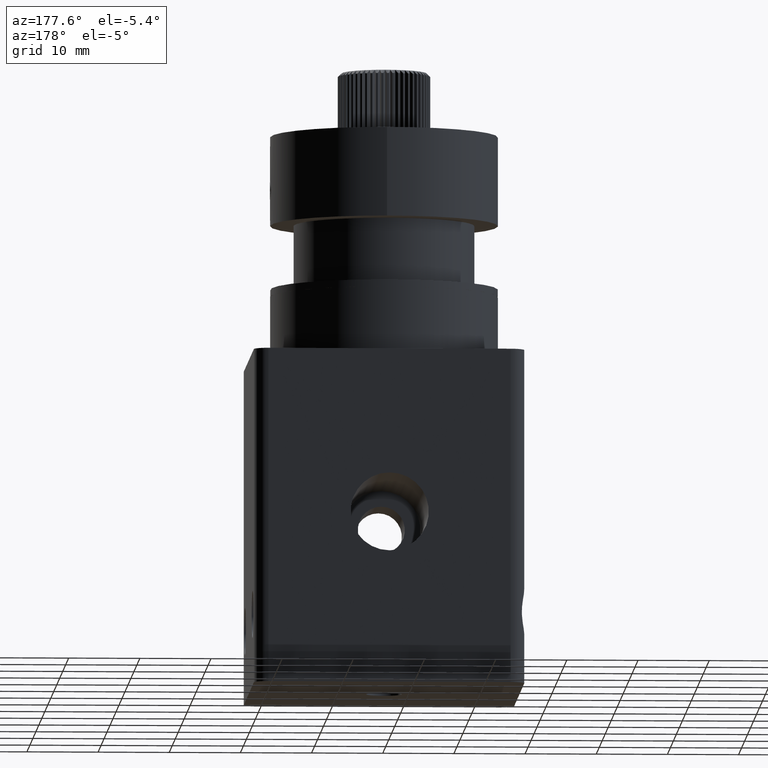
[diagram: clean part render]
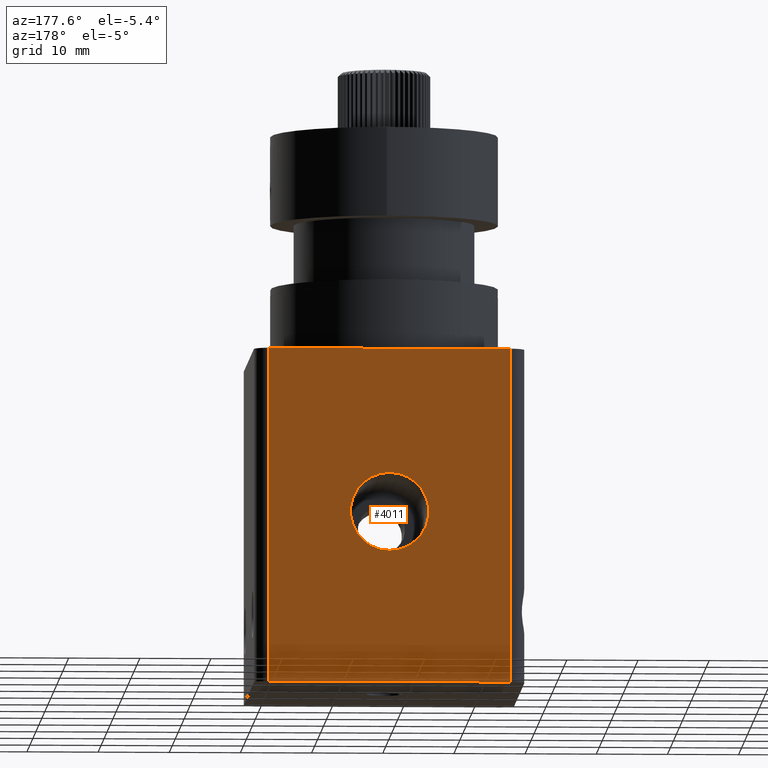
[diagram: same view with one face highlighted and labeled with its STEP entity id]
A machine part, auxiliary view. The second image highlights one B-rep face of the part: STEP entity #4011.
In plain terms, the highlighted planar face has unit normal (-0, -1, 0).
Its self-contained STEP definition (entity closure, byte-faithful):
#33 = VECTOR ( 'NONE', #7932, 1000.000000000000000 ) ;
#318 = LINE ( 'NONE', #7203, #2427 ) ;
#341 = EDGE_CURVE ( 'NONE', #7749, #7707, #318, .T. ) ;
#483 = AXIS2_PLACEMENT_3D ( 'NONE', #2908, #3500, #986 ) ;
#851 = LINE ( 'NONE', #3415, #33 ) ;
#986 = DIRECTION ( 'NONE',  ( 0.0000000000000000000, 0.0000000000000000000, 1.000000000000000000 ) ) ;
#1188 = DIRECTION ( 'NONE',  ( -1.000000000000000000, 9.130123557772669600E-017, -0.0000000000000000000 ) ) ;
#1401 = CARTESIAN_POINT ( 'NONE',  ( 35.82532685223226600, 60.65691868999381600, 46.15325513704508600 ) ) ;
#1613 = EDGE_CURVE ( 'NONE', #2401, #2108, #7386, .T. ) ;
#1744 = DIRECTION ( 'NONE',  ( 0.0000000000000000000, 0.0000000000000000000, 1.000000000000000000 ) ) ;
#1832 = ORIENTED_EDGE ( 'NONE', *, *, #1613, .F. ) ;
#1877 = FACE_BOUND ( 'NONE', #2801, .T. ) ;
#2108 = VERTEX_POINT ( 'NONE', #3599 ) ;
#2177 = ORIENTED_EDGE ( 'NONE', *, *, #341, .T. ) ;
#2197 = CARTESIAN_POINT ( 'NONE',  ( 33.82532685223227300, 60.65691868999381600, -0.8467448629549123600 ) ) ;
#2213 = CARTESIAN_POINT ( 'NONE',  ( 33.82532685223227300, 60.65691868999381600, 46.15325513704508600 ) ) ;
#2296 = VERTEX_POINT ( 'NONE', #7718 ) ;
#2401 = VERTEX_POINT ( 'NONE', #6420 ) ;
#2425 = CARTESIAN_POINT ( 'NONE',  ( 33.82532685223227300, 60.65691868999381600, 46.15325513704508600 ) ) ;
#2427 = VECTOR ( 'NONE', #2754, 1000.000000000000000 ) ;
#2504 = EDGE_CURVE ( 'NONE', #5543, #2296, #851, .T. ) ;
#2546 = EDGE_CURVE ( 'NONE', #2108, #2401, #6871, .T. ) ;
#2754 = DIRECTION ( 'NONE',  ( -0.0000000000000000000, -0.0000000000000000000, 1.000000000000000000 ) ) ;
#2801 = EDGE_LOOP ( 'NONE', ( #6294, #1832 ) ) ;
#2908 = CARTESIAN_POINT ( 'NONE',  ( 52.82532685223227300, 60.65691868999380900, 23.15325513704509000 ) ) ;
#2979 = ORIENTED_EDGE ( 'NONE', *, *, #2504, .T. ) ;
#3233 = AXIS2_PLACEMENT_3D ( 'NONE', #5577, #5551, #1744 ) ;
#3311 = VECTOR ( 'NONE', #3493, 1000.000000000000000 ) ;
#3415 = CARTESIAN_POINT ( 'NONE',  ( 69.82532685223228000, 60.65691868999380900, 46.15325513704508600 ) ) ;
#3493 = DIRECTION ( 'NONE',  ( -1.000000000000000000, 9.130123557772669600E-017, -0.0000000000000000000 ) ) ;
#3500 = DIRECTION ( 'NONE',  ( -0.0000000000000000000, 1.000000000000000000, -0.0000000000000000000 ) ) ;
#3599 = CARTESIAN_POINT ( 'NONE',  ( 52.82532685223227300, 60.65691868999380900, 28.65325513704508300 ) ) ;
#3790 = DIRECTION ( 'NONE',  ( -9.130123557772669600E-017, -1.000000000000000000, 0.0000000000000000000 ) ) ;
#3814 = EDGE_CURVE ( 'NONE', #2296, #7749, #3865, .T. ) ;
#3865 = LINE ( 'NONE', #2197, #7715 ) ;
#3917 = LINE ( 'NONE', #2213, #3311 ) ;
#4011 = ADVANCED_FACE ( 'NONE', ( #1877, #6780 ), #6263, .F. ) ;
#4878 = AXIS2_PLACEMENT_3D ( 'NONE', #2425, #3790, #6318 ) ;
#5204 = ORIENTED_EDGE ( 'NONE', *, *, #7223, .F. ) ;
#5303 = ORIENTED_EDGE ( 'NONE', *, *, #3814, .T. ) ;
#5543 = VERTEX_POINT ( 'NONE', #5745 ) ;
#5551 = DIRECTION ( 'NONE',  ( -0.0000000000000000000, 1.000000000000000000, -0.0000000000000000000 ) ) ;
#5577 = CARTESIAN_POINT ( 'NONE',  ( 52.82532685223227300, 60.65691868999380900, 23.15325513704509000 ) ) ;
#5697 = CARTESIAN_POINT ( 'NONE',  ( 35.82532685223226600, 60.65691868999381600, -0.8467448629549123600 ) ) ;
#5745 = CARTESIAN_POINT ( 'NONE',  ( 69.82532685223228000, 60.65691868999380900, 46.15325513704508600 ) ) ;
#6263 = PLANE ( 'NONE',  #4878 ) ;
#6294 = ORIENTED_EDGE ( 'NONE', *, *, #2546, .F. ) ;
#6318 = DIRECTION ( 'NONE',  ( 1.000000000000000000, -9.130123557772669600E-017, 0.0000000000000000000 ) ) ;
#6420 = CARTESIAN_POINT ( 'NONE',  ( 52.82532685223227300, 60.65691868999380900, 17.65325513704509300 ) ) ;
#6780 = FACE_OUTER_BOUND ( 'NONE', #8160, .T. ) ;
#6871 = CIRCLE ( 'NONE', #483, 5.499999999999994700 ) ;
#7203 = CARTESIAN_POINT ( 'NONE',  ( 35.82532685223226600, 60.65691868999381600, 46.15325513704508600 ) ) ;
#7223 = EDGE_CURVE ( 'NONE', #5543, #7707, #3917, .T. ) ;
#7386 = CIRCLE ( 'NONE', #3233, 5.499999999999994700 ) ;
#7707 = VERTEX_POINT ( 'NONE', #1401 ) ;
#7715 = VECTOR ( 'NONE', #1188, 1000.000000000000000 ) ;
#7718 = CARTESIAN_POINT ( 'NONE',  ( 69.82532685223228000, 60.65691868999380900, -0.8467448629549123600 ) ) ;
#7749 = VERTEX_POINT ( 'NONE', #5697 ) ;
#7932 = DIRECTION ( 'NONE',  ( 0.0000000000000000000, 0.0000000000000000000, -1.000000000000000000 ) ) ;
#8160 = EDGE_LOOP ( 'NONE', ( #5204, #2979, #5303, #2177 ) ) ;